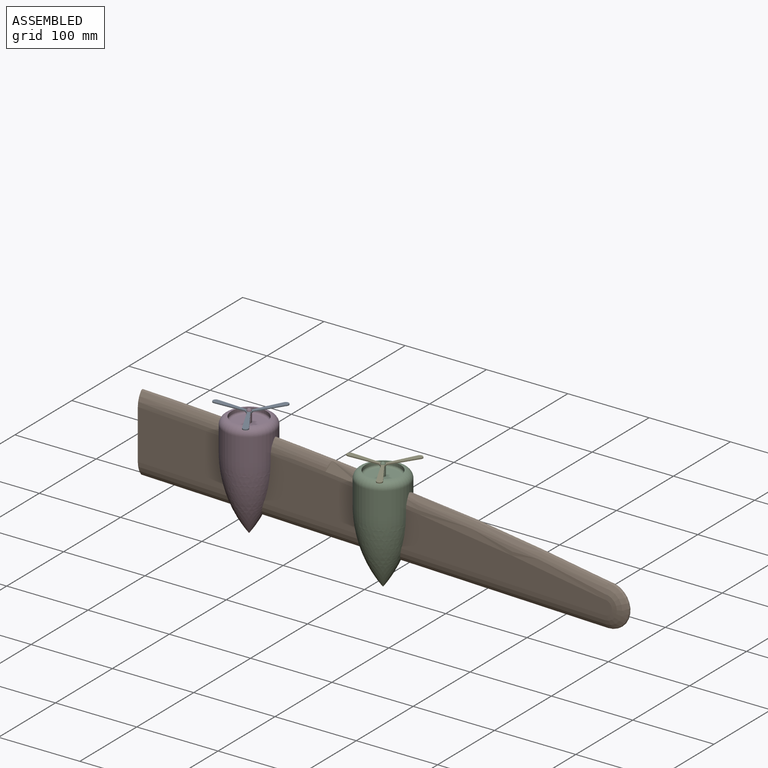
[diagram: assembled view]
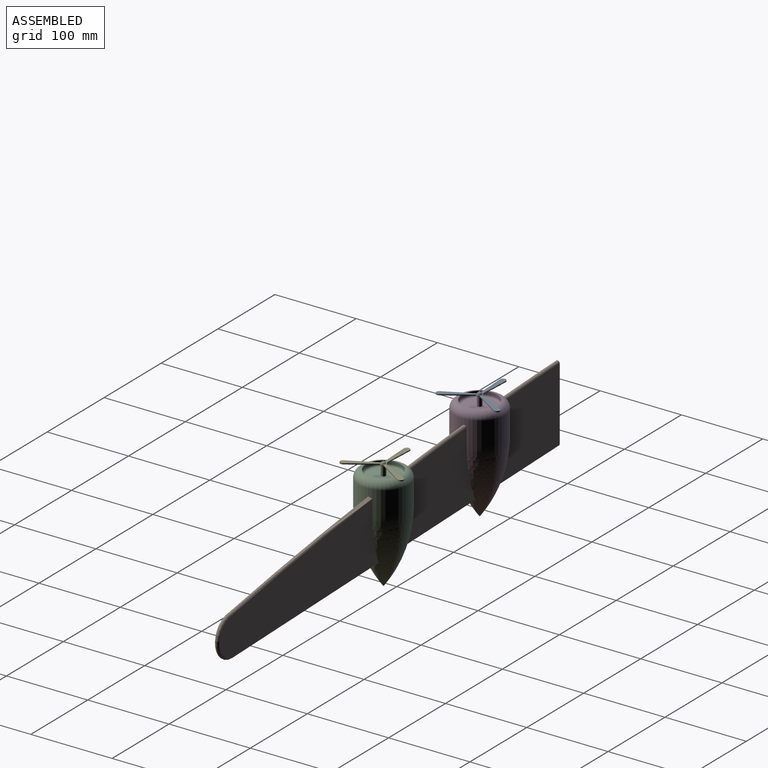
[diagram: assembled view, second angle]
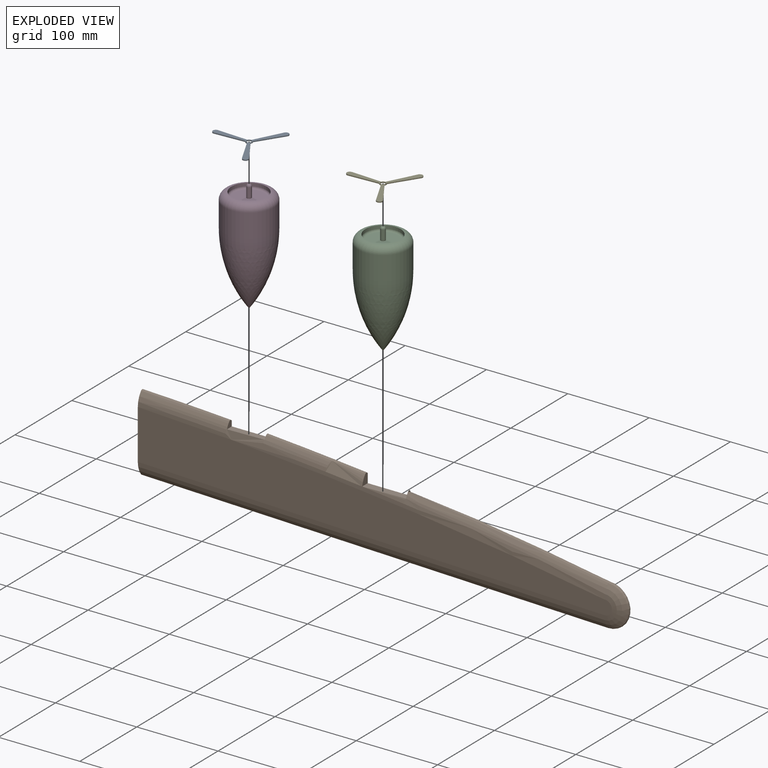
[diagram: exploded view]
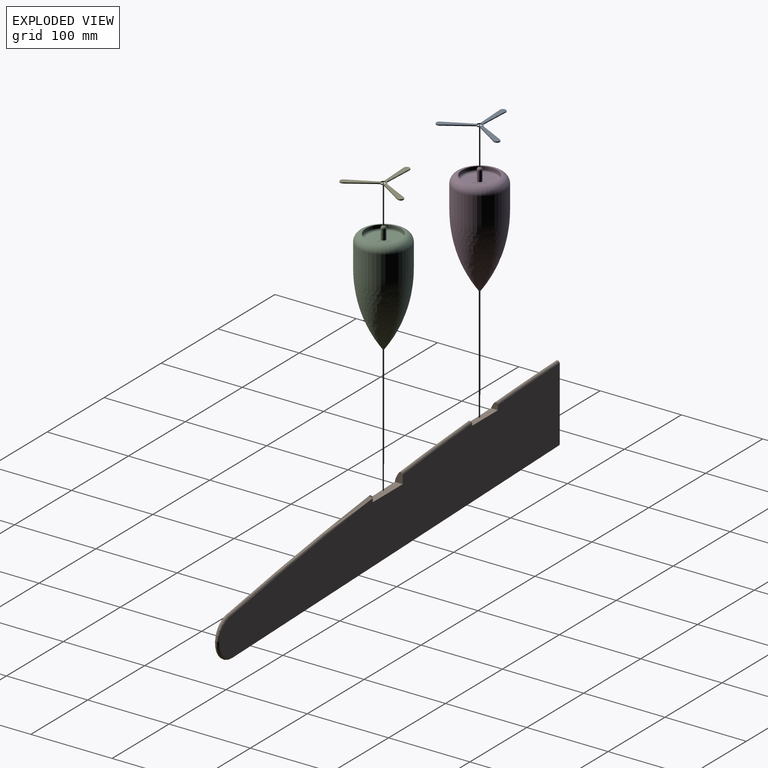
[diagram: exploded view, second angle]
ASSEMBLY  parts=5 mates=5
PART A: 15 faces, bbox 68.6x1.3x78.1 mm
  f0: plane 31.36x20.32mm, normal (0.84,0,-0.54), area 47.5mm2, adj f1,f11,f12,f13
  f1: cylinder r=3.61mm len=6.82mm, axis (0,1,0), area 14.9mm2, adj f0,f2,f12,f13
  f2: plane 33.28x17mm, normal (-0.89,0,0.45), area 47.5mm2, adj f1,f3,f12,f13
  f3: cylinder r=3.81mm len=3.67mm, axis (0,1,0), area 5.7mm2, adj f2,f4,f12,f13
  f4: plane 37.32x1.92mm, normal (0.05,0,1), area 47.5mm2, adj f3,f5,f12,f13
  f5: cylinder r=3.61mm len=7.22mm, axis (0,1,0), area 14.9mm2, adj f4,f6,f12,f13
  f6: plane 37.32x1.92mm, normal (0.05,0,-1), area 47.5mm2, adj f5,f7,f12,f13
  f7: cylinder r=3.81mm len=3.67mm, axis (0,1,0), area 5.7mm2, adj f6,f8,f12,f13
  f8: plane 33.28x17mm, normal (-0.89,0,-0.45), area 47.5mm2, adj f7,f9,f12,f13
  f9: cylinder r=3.61mm len=6.82mm, axis (0,1,0), area 14.9mm2, adj f8,f10,f12,f13
  f10: plane 31.36x20.32mm, normal (0.84,0,0.54), area 47.5mm2, adj f9,f11,f12,f13
  f11: cylinder r=3.81mm len=4.23mm, axis (0,1,0), area 5.7mm2, adj f0,f10,f12,f13
  f12: plane 78.09x68.59mm, normal (0,-1,0), area 674mm2, adj f0,f1,f2,f3,f4,f5,f6,f7
  f13: plane 78.09x68.59mm, normal (0,1,0), area 674mm2, adj f0,f1,f2,f3,f4,f5,f6,f7
  f14: cylinder r=2.9mm len=5.79mm, axis (0,-1,0), area 23.1mm2, adj f12,f13
PART B: 17 faces, bbox 603.5x10.3x125.2 mm
  f0: plane 597.53x106.72mm, normal (0,1,0), area 43201.5mm2, adj f2,f3,f4,f8,f9,f10,f11,f12
  f1: torus R=4190.17mm, axis (0,1,0), area 9141.5mm2, adj f2,f3,f4,f5,f7,f9,f11,f12
  f2: torus R=4204.54mm, axis (0,-1,0), area 679.1mm2, adj f0,f1,f4,f14
  f3: torus R=4204.54mm, axis (0,-1,0), area 765.1mm2, adj f0,f1,f11,f16
  f4: plane 94.89x10.27mm, normal (-1,0,0), area 891.2mm2, adj f0,f1,f2,f5,f6,f8
  f5: plane 583.17x77.97mm, normal (0,-1,0), area 26486.5mm2, adj f1,f4,f6,f7
  f6: cylinder r=25.4mm len=574.54mm, axis (1,0,-0.03), area 9910.7mm2, adj f4,f5,f7,f8
  f7: torus R=8.84mm, axis (0,1,0), area 942.3mm2, adj f1,f5,f6,f10
  f8: cylinder r=2.54mm len=573.71mm, axis (1,0,-0.03), area 3588.5mm2, adj f0,f4,f6,f10
  f9: torus R=4204.54mm, axis (0,-1,0), area 1557.3mm2, adj f0,f1,f10,f13
  f10: torus R=23.21mm, axis (0,-1,0), area 493.7mm2, adj f0,f7,f8,f9
  f11: plane 12.8x9.88mm, normal (1,0,0), area 93.7mm2, adj f0,f1,f3,f12
  f12: plane 52.61x9.8mm, normal (0,0,1), area 479.1mm2, adj f0,f1,f11,f13
  f13: plane 8.18x7.07mm, normal (-1,0,0), area 42mm2, adj f0,f1,f9,f12
  f14: plane 8.58x8.04mm, normal (1,0,0), area 50.1mm2, adj f0,f1,f2,f15
  f15: plane 45.34x8.54mm, normal (0,0,1), area 358.6mm2, adj f0,f1,f14,f16
  f16: plane 7.19x4.98mm, normal (-1,0,0), area 26.1mm2, adj f0,f1,f3,f15
PART C: 11 faces, bbox 188.6x169.6x188.6 mm
  f0: plane 5.79x2.9mm, normal (0,-1,0), area 0.1mm2, adj f6,f9
  f1: cylinder r=30.64mm len=61.29mm, axis (0,1,0), area 5623.9mm2, adj f2,f3
  f2: plane 183.55x183.55mm, normal (0,1,0), area 14.6mm2, adj f1,f8
  f3: torus R=21.75mm, axis (0,-1,0), area 2405.2mm2, adj f1,f4
  f4: cylinder r=21.75mm len=43.51mm, axis (0,-1,0), area 520.7mm2, adj f3,f10
  f5: plane 38.43x38.43mm, normal (0,-1,0), area 1133.4mm2, adj f6,f10
  f6: cylinder r=2.89mm len=12.7mm, axis (0,1,0), area 230.7mm2, adj f0,f5,f7
  f7: plane 5.78x2.89mm, normal (0,-1,0), area 0.1mm2, adj f6,f9
  f8: revolved ~61.13x30.57mm, area 0mm2, adj f2
  f9: revolved ~5.78x5.74mm, area 51.9mm2, adj f0,f7
  f10: torus R=19.21mm, axis (0,-1,0), area 522.2mm2, adj f4,f5
PART D: same geometry as C
PART E: same geometry as A
PLACE A rot(axis=(-1,0,0),90deg) t=(-243.17,1.83,179.94)mm
PLACE B t=(-376.48,6.89,171.93)mm
PLACE C rot(axis=(-1,0,0),90deg) t=(-77.01,-0.17,122.27)mm
PLACE D rot(axis=(-1,0,0),90deg) t=(-243.17,1.83,136.76)mm
PLACE E rot(axis=(-1,0,0),90deg) t=(-77.01,-0.17,166.08)mm
MATE fastened E.f14 <-> C.f6  axis (0,0,1) through (-77.01,-0.17,166.72)mm
MATE parallel D.f1 <-> B.f15  axis (0,0,1) through (-243.17,1.83,168.51)mm
MATE parallel D.f1 <-> B.f15  axis (0,0,1) through (-243.17,1.83,165.97)mm
MATE fastened D.f6 <-> A.f14  axis (0,0,1) through (-243.17,1.83,181.21)mm
MATE parallel C.f1 <-> B.f12  axis (0,0,1) through (-77.01,-0.17,151.48)mm
